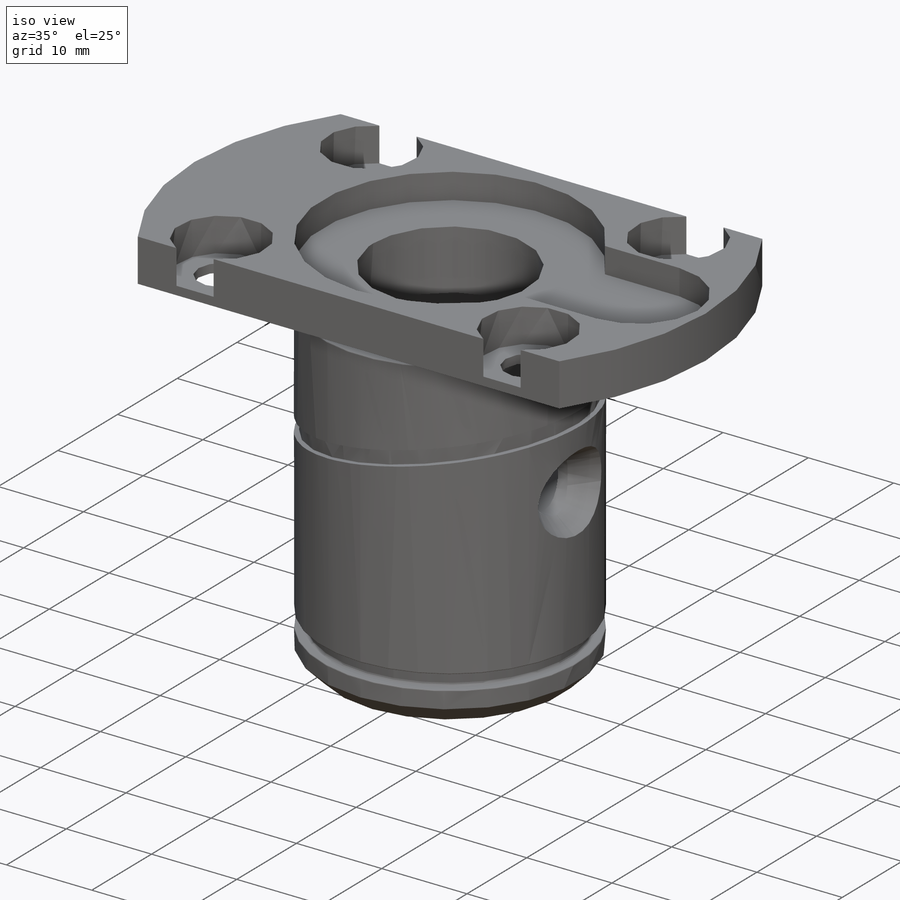
[diagram: iso view]
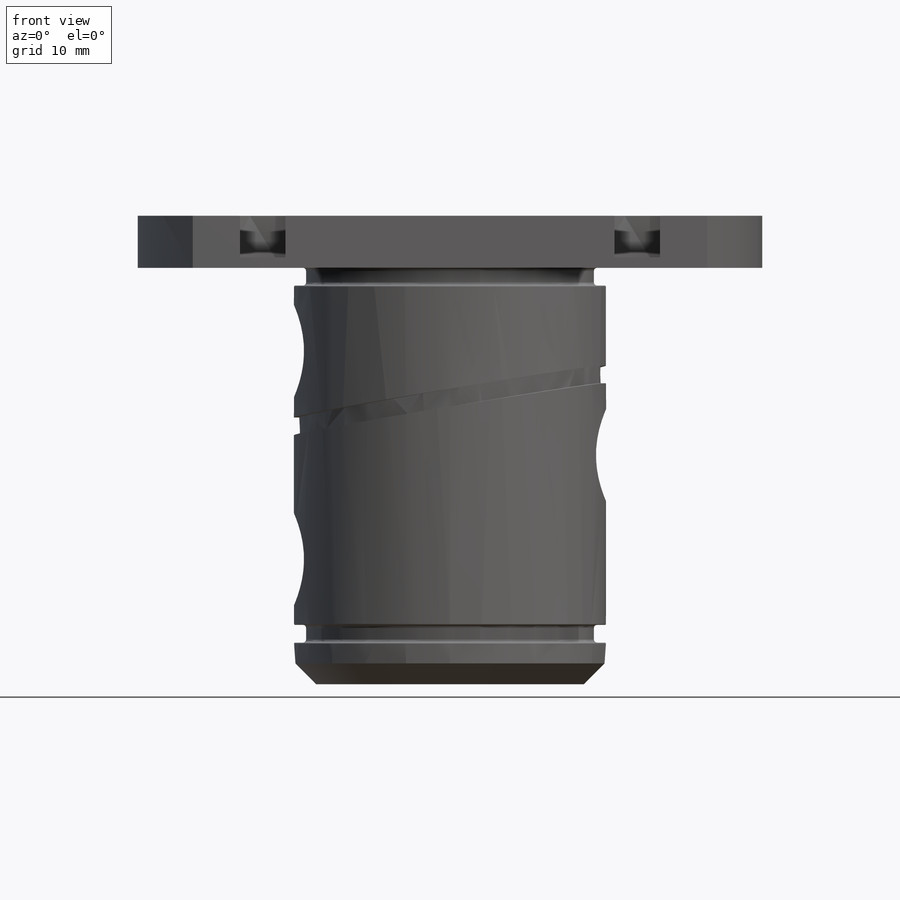
[diagram: front view]
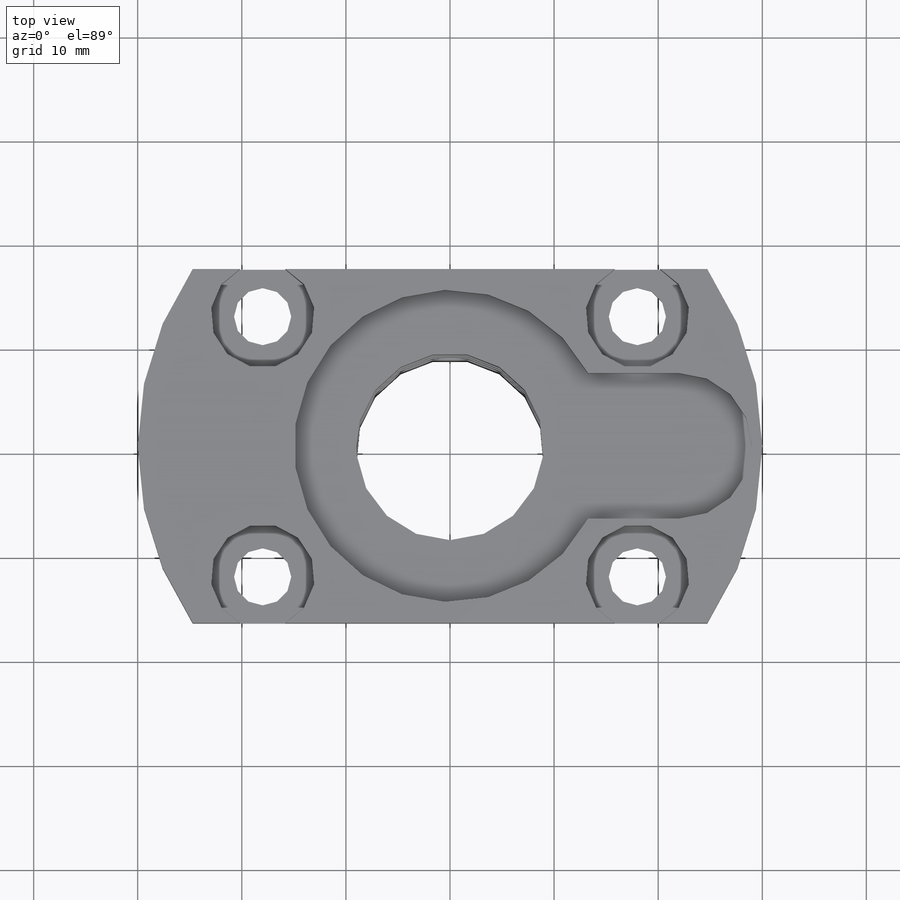
[diagram: top view]
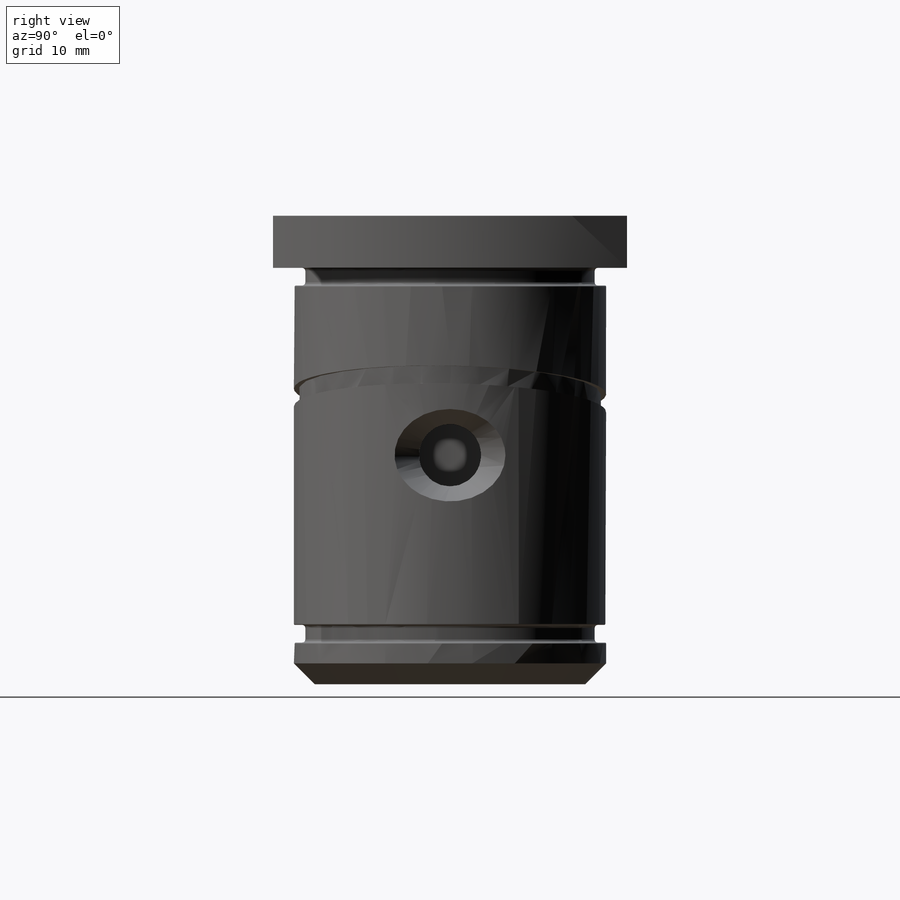
[diagram: right view]
SOLIDWORKS PART (.sldprt)
format: sldprt  version: not decoded by parser v0  size: 839,680 bytes
history: native  units: mm
features: sketch x17, fillet x6, plane x4, revolve x4, cut_revolve x2, hole x2, cut_extrude x2, sweep x2, material x1, pattern_linear x1, chamfer x1, mirror x1 + 1 further entry (+14 scaffold rows collapsed; 2 parser-record rows omitted)
feature tree (60):
  scaffold x14  (default folders/planes/origin — collapsed)
  material  "42CrMo4V (1.7225)"
  plane  "_45° um Y"
  plane  "135° um Y"
  sketch  "Sketch1"  dims[c1.D1=18.0mm c1.D2=2.0mm c1.D3=6.0mm c1.D4=9.4mm c1.D5=15.0mm c1.D6=1.1mm c1.D7=1.7mm c1.D8=6.0mm c1.D9=10.0mm c1.D10=~12.971096mm c2.D10=45.0deg c2.D11=2.0mm c2.D12=0.5mm c2.D13=60.0mm c2.D14=30.0mm c2.D15=4.0mm c2.D5=5.0mm c3.D12=10.0mm c3.D3=0.8mm c3.D8=6.0mm c3.D9=1.5mm c3.D16=1.5mm c4.D3=1.2mm c4.D4=10.0mm c4.D17=10.0mm c4.D18=4.0mm c4.D2=40.0mm]
  revolve  "Revolve1"  Angle=360deg
  fillet  "Fillet3"  Radius=0.3mm
  fillet  "Fillet4"  Radius=0.1mm
  sketch  "Sketch21"  dims[D1=6.0mm D2=2.0mm D3=18.0mm]
  cut_revolve  "Cut-Revolve1"  Angle=360deg
  pattern_linear  "LPattern1"  Count1=2 Count2=2 Spacing1=10mm Spacing2=10mm
  hole  "Ø6 Diameter Hole1"  Diameter=6mm Depth=24mm
  sketch  "3DSketch1"  dims[D1=18.0mm D2=20.0mm]
  sketch  "Sketch22"  dims[hole-wizard template sketch: 46 standard entries collapsed; hole parameters kept: c15.Bohrerdurchmesser=6.0mm c15.Bohrungstiefe=24.0mm c15.D3=~14.816244mm c15.Spitzenwinkel=118.0deg]
  chamfer  "Chamfer1"  Distance=3mm Angle=45deg
  sketch  "Sketch7"  dims[c1.D1=30.0mm c1.D2=15.0mm c1.D3=25.0mm c2.D2=22.0mm c2.D3=14.0mm]
  cut_extrude  "Extrude1"  Depth=3mm
  sketch  "Sketch17"  dims[D1=34.0mm]
  cut_extrude  "Extrude6"  [1 undecoded]
  hole  "CBORE for M5 Hex Socket Head Cap Screw1"  Diameter=5.5mm Depth=45mm
  sketch  "Sketch19"  dims[D1=25.0mm D2=36.0mm]
  sketch  "Sketch18"  dims[hole-wizard template sketch: 42 standard entries collapsed; hole parameters kept: c12.Bohrungstiefe=45.0mm c12.Senkdurchmesser2=10.0mm c12.Senktiefe2=4.0mm c12.Senkdurchmesser4 (Oben)=10.05mm c12.D6=~4.399409mm c12.Senkwinkel2 (Oben)=90.0deg]
  sketch  "Sketch27"  dims[c1.D1=3.0mm c1.D2=7.5mm c2.D1=1.0mm c2.D3=2.5mm c3.D1=1.0mm]
  plane  "Plane3"
  sketch  "Sketch28"
  sketch  "Sketch36"  dims[c1.D1=1.7mm c1.D2=15.0mm c1.D3=16.0mm c1.D4=90.0deg c2.D3=14.5mm]
  sketch  "Sketch37"
  sweep  "Cut-Sweep5"
  fillet  "Fillet7"  Radius=0.3mm
  fillet  "Fillet8"  Radius=0.1mm
  plane  "Plane4"
  mirror  "Mirror3"
  parser-record x2  (decoder bookkeeping rows leaked as tree rows — omitted from the tree; the rows remain in map.json)
  sketch  "Sketch29"
  cut_revolve  "Cut-Revolve2"  Angle=360deg
  fillet  "Fillet5"  Radius=0.1mm
  fillet  "Fillet6"  Radius=0.3mm
  sketch  "Sketch31"
  "Sketch-Pattern3"
  sketch  "Sketch34"  dims[D1=1.7mm D2=15.0mm D3=16.0mm]
  revolve  "Revolve2"  Angle=360deg
  sketch  "Sketch35"  dims[D1=1.7mm D2=15.0mm D3=16.0mm D4=90.0deg]
  revolve  "Revolve3"  Angle=360deg
  revolve  "Revolve4"  Angle=360deg
  sweep  "Cut-Sweep6"
  sketch  "Sketch"
decode coverage: 29 of 38 modeling features carry decoded parameters; 1 rows unclassified (native names shown)
note: ~ marks probable driven/reference dimensions
note: 1 parameter value undecoded
note: suppression state not decoded; provenance and decode notes live in map.json
